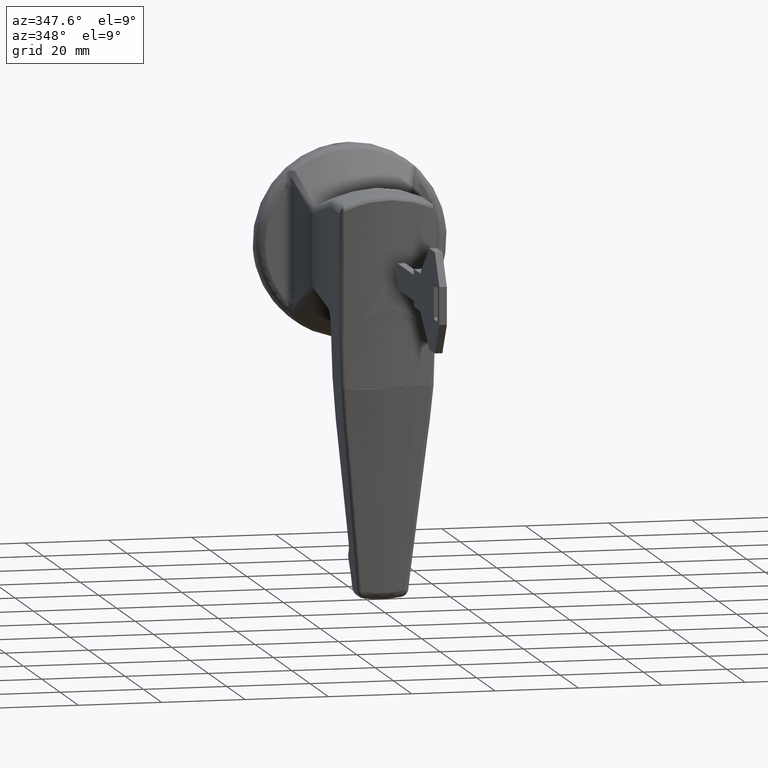
[diagram: clean part render]
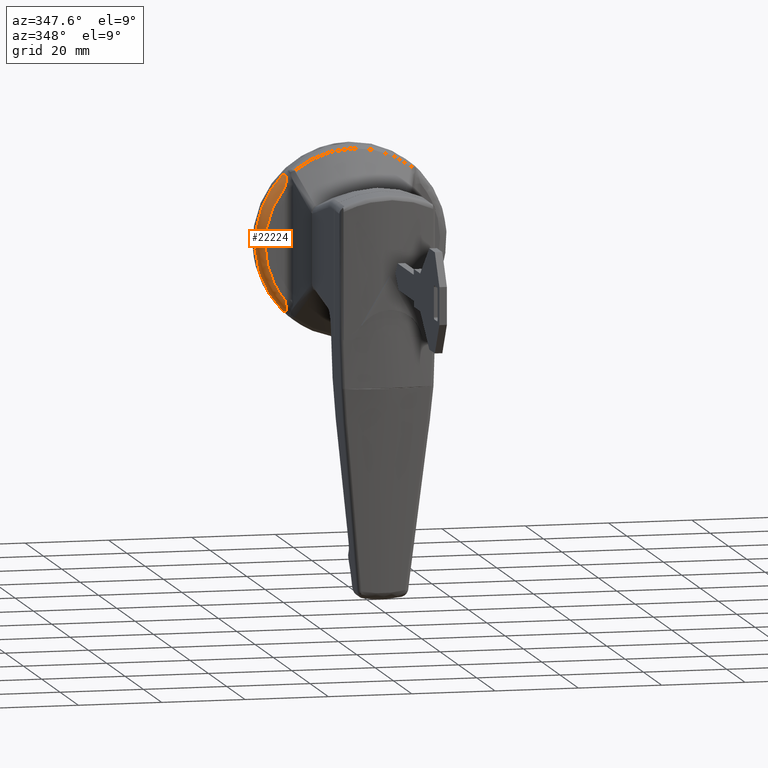
[diagram: same view with one face highlighted and labeled with its STEP entity id]
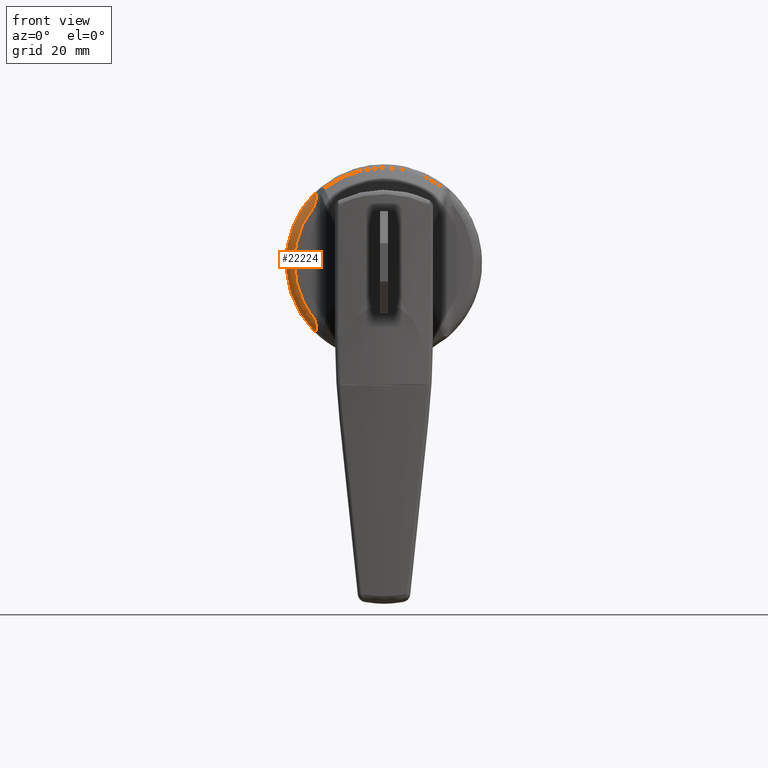
[diagram: same view with one face highlighted and labeled with its STEP entity id]
A machine part, auxiliary view. The second image highlights one B-rep face of the part: STEP entity #22224.
A second angle (front view) of the same face is appended — the face is thin or edge-on in the first view.
In plain terms, the highlighted face is a freeform B-spline surface patch.
Its self-contained STEP definition (entity closure, byte-faithful):
#17383=CARTESIAN_POINT('',(-2.499999999999860,22.957100027241079,-1.404121910382808));
#17384=VERTEX_POINT('',#17383);
#17390=CARTESIAN_POINT('',(-2.499999999999860,16.446406345843751,16.078423999490450));
#17391=VERTEX_POINT('',#17390);
#17392=CARTESIAN_POINT('',(-2.499999999999859,22.957100027241079,-1.404121910382809));
#17393=CARTESIAN_POINT('',(-2.499999999999861,23.580080772379038,8.781483182313860));
#17394=CARTESIAN_POINT('',(-2.499999999999860,16.446406345843759,16.078423999490440));
#17402=(BOUNDED_CURVE()B_SPLINE_CURVE(2,(#17392,#17393,#17394),.UNSPECIFIED.,.F.,.U.)B_SPLINE_CURVE_WITH_KNOTS((3,3),(0.462521157338711,1.0),.UNSPECIFIED.)CURVE()GEOMETRIC_REPRESENTATION_ITEM()RATIONAL_B_SPLINE_CURVE((0.858331059237013,0.846851394238771,1.0))REPRESENTATION_ITEM(''));
#17403=EDGE_CURVE('',#17384,#17391,#17402,.T.);
#17615=CARTESIAN_POINT('',(-2.499999999999860,16.446406345843751,-16.078423999490450));
#17616=VERTEX_POINT('',#17615);
#17636=CARTESIAN_POINT('',(-2.499999999999860,16.446406345843751,-16.078423999490450));
#17637=CARTESIAN_POINT('',(-2.499999999999860,22.434189479946721,-9.953600164930032));
#17638=CARTESIAN_POINT('',(-2.499999999999859,22.957100027241079,-1.404121910382809));
#17646=(BOUNDED_CURVE()B_SPLINE_CURVE(2,(#17636,#17637,#17638),.UNSPECIFIED.,.F.,.U.)B_SPLINE_CURVE_WITH_KNOTS((3,3),(0.0,0.462521157338711),.UNSPECIFIED.)CURVE()GEOMETRIC_REPRESENTATION_ITEM()RATIONAL_B_SPLINE_CURVE((1.0,0.868209751232697,0.858331059237013))REPRESENTATION_ITEM(''));
#17647=EDGE_CURVE('',#17616,#17384,#17646,.T.);
#20462=CARTESIAN_POINT('',(-4.360890042112716,15.891347501838951,14.825060234574661));
#20463=VERTEX_POINT('',#20462);
#20464=CARTESIAN_POINT('',(-4.360890042112716,15.891347501838951,14.825060234574661));
#20465=CARTESIAN_POINT('',(-4.336329869923523,15.869641625386249,14.939749099002251));
#20466=CARTESIAN_POINT('',(-4.307883555155428,15.848697182109641,15.053796647815769));
#20467=CARTESIAN_POINT('',(-4.240855671457030,15.811950068568491,15.278447857859970));
#20468=CARTESIAN_POINT('',(-4.202354342346816,15.796014326163981,15.389263614975320));
#20469=CARTESIAN_POINT('',(-4.132509880227856,15.780573125013820,15.552149737283910));
#20470=CARTESIAN_POINT('',(-4.107182131834605,15.776864820961791,15.605881202666980));
#20471=CARTESIAN_POINT('',(-4.064927374672172,15.774580827252370,15.685339163632669));
#20472=CARTESIAN_POINT('',(-4.050120464427925,15.774378094019410,15.711624917914101));
#20473=CARTESIAN_POINT('',(-4.019292502159162,15.775303926461641,15.762932075759251));
#20474=CARTESIAN_POINT('',(-4.003223108232480,15.776428520097131,15.788048332553471));
#20475=CARTESIAN_POINT('',(-3.952771568388925,15.782104408547131,15.861554214460339));
#20476=CARTESIAN_POINT('',(-3.916173216410290,15.788943408779501,15.908121909118361));
#20477=CARTESIAN_POINT('',(-3.855315973644795,15.805303215344569,15.973079074785311));
#20478=CARTESIAN_POINT('',(-3.834139955236120,15.811755436168340,15.993773822156220));
#20479=CARTESIAN_POINT('',(-3.790383469206940,15.826613406237280,16.032573634818430));
#20480=CARTESIAN_POINT('',(-3.767613629885543,15.835089119688650,16.050831047446120));
#20481=CARTESIAN_POINT('',(-3.698102304910111,15.863024520029740,16.100877316071511));
#20482=CARTESIAN_POINT('',(-3.649971441990787,15.885036436557940,16.128184572351419));
#20483=CARTESIAN_POINT('',(-3.575084436893808,15.922066805977719,16.160937309744359));
#20484=CARTESIAN_POINT('',(-3.549573559009659,15.935128813696730,16.170517727862389));
#20485=CARTESIAN_POINT('',(-3.498180269804192,15.962096334201140,16.186941490360489));
#20486=CARTESIAN_POINT('',(-3.472339362772042,15.975975427231351,16.193787483384170));
#20487=CARTESIAN_POINT('',(-3.420333934176062,16.004298023794789,16.205078292262868));
#20488=CARTESIAN_POINT('',(-3.394134764936783,16.018761528882528,16.209518904355669));
#20489=CARTESIAN_POINT('',(-3.342122380112100,16.047634484147689,16.216211246597570));
#20490=CARTESIAN_POINT('',(-3.316210381502017,16.062097547630000,16.218488013763960));
#20491=CARTESIAN_POINT('',(-3.238610342523948,16.105357729897460,16.222611900801411));
#20492=CARTESIAN_POINT('',(-3.187052831321874,16.134019053750251,16.221777720765090));
#20493=CARTESIAN_POINT('',(-3.032021660469971,16.218161626233449,16.211257192564709));
#20494=CARTESIAN_POINT('',(-2.928171933134300,16.271790054622191,16.193705579712919));
#20495=CARTESIAN_POINT('',(-2.769138835338723,16.344519433733339,16.157175195800079));
#20496=CARTESIAN_POINT('',(-2.715614739794863,16.367462345494431,16.143242355641600));
#20497=CARTESIAN_POINT('',(-2.608307903813802,16.409703635185181,16.112748258239911));
#20498=CARTESIAN_POINT('',(-2.554378481721607,16.429074567238860,16.096152445614369));
#20499=CARTESIAN_POINT('',(-2.499999999999860,16.446406345843751,16.078423999490450));
#20500=B_SPLINE_CURVE_WITH_KNOTS('',3,(#20464,#20465,#20466,#20467,#20468,#20469,#20470,#20471,#20472,#20473,#20474,#20475,#20476,#20477,#20478,#20479,#20480,#20481,#20482,#20483,#20484,#20485,#20486,#20487,#20488,#20489,#20490,#20491,#20492,#20493,#20494,#20495,#20496,#20497,#20498,#20499),.UNSPECIFIED.,.F.,.U.,(4,2,2,2,2,2,2,2,2,2,2,2,2,2,2,2,2,4),(0.0,0.124999999999997,0.249999999999994,0.312499999999991,0.343749999999992,0.374999999999992,0.437499999999993,0.468749999999994,0.499999999999995,0.562499999999996,0.593749999999996,0.624999999999997,0.656249999999998,0.687499999999998,0.749999999999999,0.875000000000001,0.937500000000001,1.0),.UNSPECIFIED.);
#20501=EDGE_CURVE('',#20463,#17391,#20500,.T.);
#20577=CARTESIAN_POINT('',(-4.499999999999860,16.304739585055049,13.234631353518640));
#20578=VERTEX_POINT('',#20577);
#20608=CARTESIAN_POINT('',(-4.499999999999860,16.304739585055049,13.234631353518640));
#20609=CARTESIAN_POINT('',(-4.499999999999860,16.224164225709600,13.498568452497990));
#20610=CARTESIAN_POINT('',(-4.492190085315786,16.147015241997959,13.762762437225330));
#20611=CARTESIAN_POINT('',(-4.461236991963170,16.041284563228949,14.160094149291719));
#20612=CARTESIAN_POINT('',(-4.447672373390100,16.007730138498221,14.292714387496670));
#20613=CARTESIAN_POINT('',(-4.420742299928993,15.960981237766260,14.492043780396060));
#20614=CARTESIAN_POINT('',(-4.410661044377075,15.945999598097270,14.558553914595469));
#20615=CARTESIAN_POINT('',(-4.387870788179913,15.917489360782310,14.691739492699661));
#20616=CARTESIAN_POINT('',(-4.375131526435807,15.903933891577520,14.758556642816600));
#20617=CARTESIAN_POINT('',(-4.360890042112722,15.891347501838929,14.825060234574661));
#20618=B_SPLINE_CURVE_WITH_KNOTS('',3,(#20608,#20609,#20610,#20611,#20612,#20613,#20614,#20615,#20616,#20617),.UNSPECIFIED.,.F.,.U.,(4,2,2,2,4),(0.0,0.500000000000004,0.750000000000004,0.875000000000002,1.0),.UNSPECIFIED.);
#20619=EDGE_CURVE('',#20578,#20463,#20618,.T.);
#20638=CARTESIAN_POINT('',(-4.499999999999860,16.304739585055049,-13.234631353518640));
#20639=VERTEX_POINT('',#20638);
#20727=CARTESIAN_POINT('',(-4.360890042115875,15.891347501841700,-14.825060234559921));
#20728=VERTEX_POINT('',#20727);
#20756=CARTESIAN_POINT('',(-4.360890042115873,15.891347501841720,-14.825060234559921));
#20757=CARTESIAN_POINT('',(-4.389216812266209,15.916382235656579,-14.692782452609940));
#20758=CARTESIAN_POINT('',(-4.411681316192283,15.945271496675360,-14.559047881254140));
#20759=CARTESIAN_POINT('',(-4.447652874001967,16.007676792739851,-14.292921477371699));
#20760=CARTESIAN_POINT('',(-4.461229786310194,16.041260895829300,-14.160183573859230));
#20761=CARTESIAN_POINT('',(-4.492201106791612,16.147050997850059,-13.762627101395640));
#20762=CARTESIAN_POINT('',(-4.499999999999882,16.224199794898009,-13.498451940099191));
#20763=CARTESIAN_POINT('',(-4.499999999999880,16.304739585055049,-13.234631353518640));
#20764=B_SPLINE_CURVE_WITH_KNOTS('',3,(#20756,#20757,#20758,#20759,#20760,#20761,#20762,#20763),.UNSPECIFIED.,.F.,.U.,(4,2,2,4),(0.0,0.250000000000000,0.499999999999999,1.0),.UNSPECIFIED.);
#20765=EDGE_CURVE('',#20728,#20639,#20764,.T.);
#20858=CARTESIAN_POINT('',(-2.499999999999860,16.446406345843751,-16.078423999490450));
#20859=CARTESIAN_POINT('',(-2.608741505875759,16.411747715346220,-16.113875852269739));
#20860=CARTESIAN_POINT('',(-2.715199892231353,16.369136501369169,-16.144731196935378));
#20861=CARTESIAN_POINT('',(-2.873659234410445,16.296744666825330,-16.181210377976129));
#20862=CARTESIAN_POINT('',(-2.926273885687800,16.271189434674032,-16.191716686739660));
#20863=CARTESIAN_POINT('',(-3.031535341176439,16.217753114843681,-16.208535541770161));
#20864=CARTESIAN_POINT('',(-3.084102917184995,16.189900750345458,-16.214815992203121));
#20865=CARTESIAN_POINT('',(-3.188057335859629,16.133467754361611,-16.221821024987161));
#20866=CARTESIAN_POINT('',(-3.239639308975185,16.104784673833379,-16.222589758249079));
#20867=CARTESIAN_POINT('',(-3.342463176844526,16.047461660248882,-16.217059874992099));
#20868=CARTESIAN_POINT('',(-3.393702135093622,16.018814652868539,-16.210779206689161));
#20869=CARTESIAN_POINT('',(-3.496413656254876,15.962851950867480,-16.188639829947601));
#20870=CARTESIAN_POINT('',(-3.548335415022338,15.935337458503220,-16.172481810384841));
#20871=CARTESIAN_POINT('',(-3.648113170003611,15.885913181771929,-16.129146271170409));
#20872=CARTESIAN_POINT('',(-3.696470597694974,15.863727599015959,-16.101921026414491));
#20873=CARTESIAN_POINT('',(-3.766605171503135,15.835471651641880,-16.051620122052491));
#20874=CARTESIAN_POINT('',(-3.789214892523305,15.827036744074629,-16.033540733124710));
#20875=CARTESIAN_POINT('',(-3.832984252854154,15.812122704902450,-15.994864135627090));
#20876=CARTESIAN_POINT('',(-3.854249871130188,15.805618017642900,-15.974145990949991));
#20877=CARTESIAN_POINT('',(-3.914960229978818,15.789215337660201,-15.909552918113519));
#20878=CARTESIAN_POINT('',(-3.951503670451251,15.782318815742460,-15.863222424403560));
#20879=CARTESIAN_POINT('',(-4.018705858512103,15.774617644258100,-15.765662843342451));
#20880=CARTESIAN_POINT('',(-4.049400065039917,15.773816822512259,-15.714341260600710));
#20881=CARTESIAN_POINT('',(-4.106012764549317,15.776729718084340,-15.608267518455239));
#20882=CARTESIAN_POINT('',(-4.131724113103843,15.780432266914650,-15.553889761832190));
#20883=CARTESIAN_POINT('',(-4.202175031798682,15.795910176062261,-15.389863351002420));
#20884=CARTESIAN_POINT('',(-4.240789781502067,15.811915982127431,-15.278661628010630));
#20885=CARTESIAN_POINT('',(-4.307912057388038,15.848710772381370,-15.053708182729491));
#20886=CARTESIAN_POINT('',(-4.336290939316138,15.869607219155061,-14.939930893623300));
#20887=CARTESIAN_POINT('',(-4.360890042115875,15.891347501841700,-14.825060234559921));
#20888=B_SPLINE_CURVE_WITH_KNOTS('',3,(#20858,#20859,#20860,#20861,#20862,#20863,#20864,#20865,#20866,#20867,#20868,#20869,#20870,#20871,#20872,#20873,#20874,#20875,#20876,#20877,#20878,#20879,#20880,#20881,#20882,#20883,#20884,#20885,#20886,#20887),.UNSPECIFIED.,.F.,.U.,(4,2,2,2,2,2,2,2,2,2,2,2,2,2,4),(0.0,0.125000000000003,0.187500000000004,0.250000000000005,0.312500000000007,0.375000000000008,0.437500000000010,0.500000000000011,0.531250000000011,0.562500000000012,0.625000000000010,0.687500000000008,0.750000000000007,0.875000000000003,1.0),.UNSPECIFIED.);
#20889=EDGE_CURVE('',#17616,#20728,#20888,.T.);
#22186=CARTESIAN_POINT('',(-2.360551633696343,14.951134369617550,17.471110584695349));
#22187=CARTESIAN_POINT('',(-2.360551633696344,35.366956842789662,1.110808E-015));
#22188=CARTESIAN_POINT('',(-2.360551633696344,14.951134369617552,-17.471110584695353));
#22189=CARTESIAN_POINT('',(-4.654672108673626,15.055389181613934,17.592937283883938));
#22190=CARTESIAN_POINT('',(-4.654672108673626,35.613571938699870,1.087589E-015));
#22191=CARTESIAN_POINT('',(-4.654672108673627,15.055389181613942,-17.592937283883941));
#22192=CARTESIAN_POINT('',(-4.495184656438319,13.563743156860017,15.849878061256971));
#22193=CARTESIAN_POINT('',(-4.495184656438321,32.085078429244504,1.111056E-015));
#22194=CARTESIAN_POINT('',(-4.495184656438319,13.563743156860017,-15.849878061256971));
#22202=(BOUNDED_SURFACE()B_SPLINE_SURFACE(2,2,((#22186,#22189,#22192),(#22187,#22190,#22193),(#22188,#22191,#22194)),.UNSPECIFIED.,.F.,.F.,.U.)B_SPLINE_SURFACE_WITH_KNOTS((3,3),(3,3),(0.0,42.349410021511680),(0.0,3.644741424222417),.UNSPECIFIED.)GEOMETRIC_REPRESENTATION_ITEM()RATIONAL_B_SPLINE_SURFACE(((0.839919061683979,0.552708524665958,0.844597542062020),(0.546104384821692,0.359363851373068,0.549146271552573),(0.839919061683979,0.552708524665958,0.844597542062020)))REPRESENTATION_ITEM('')SURFACE());
#22203=CARTESIAN_POINT('',(-4.499999999999860,16.304739585055060,13.234631353518640));
#22204=CARTESIAN_POINT('',(-4.499999999999860,27.047350109425917,0.0));
#22205=CARTESIAN_POINT('',(-4.499999999999860,16.304739585055060,-13.234631353518640));
#22213=(BOUNDED_CURVE()B_SPLINE_CURVE(2,(#22203,#22204,#22205),.UNSPECIFIED.,.F.,.U.)CURVE()GEOMETRIC_REPRESENTATION_ITEM()QUASI_UNIFORM_CURVE()RATIONAL_B_SPLINE_CURVE((1.0,0.776416170716907,1.0))REPRESENTATION_ITEM(''));
#22214=EDGE_CURVE('',#20578,#20639,#22213,.T.);
#22215=ORIENTED_EDGE('',*,*,#22214,.F.);
#22216=ORIENTED_EDGE('',*,*,#20619,.T.);
#22217=ORIENTED_EDGE('',*,*,#20501,.T.);
#22218=ORIENTED_EDGE('',*,*,#17403,.F.);
#22219=ORIENTED_EDGE('',*,*,#17647,.F.);
#22220=ORIENTED_EDGE('',*,*,#20889,.T.);
#22221=ORIENTED_EDGE('',*,*,#20765,.T.);
#22222=EDGE_LOOP('',(#22215,#22216,#22217,#22218,#22219,#22220,#22221));
#22223=FACE_OUTER_BOUND('',#22222,.T.);
#22224=ADVANCED_FACE('',(#22223),#22202,.T.);